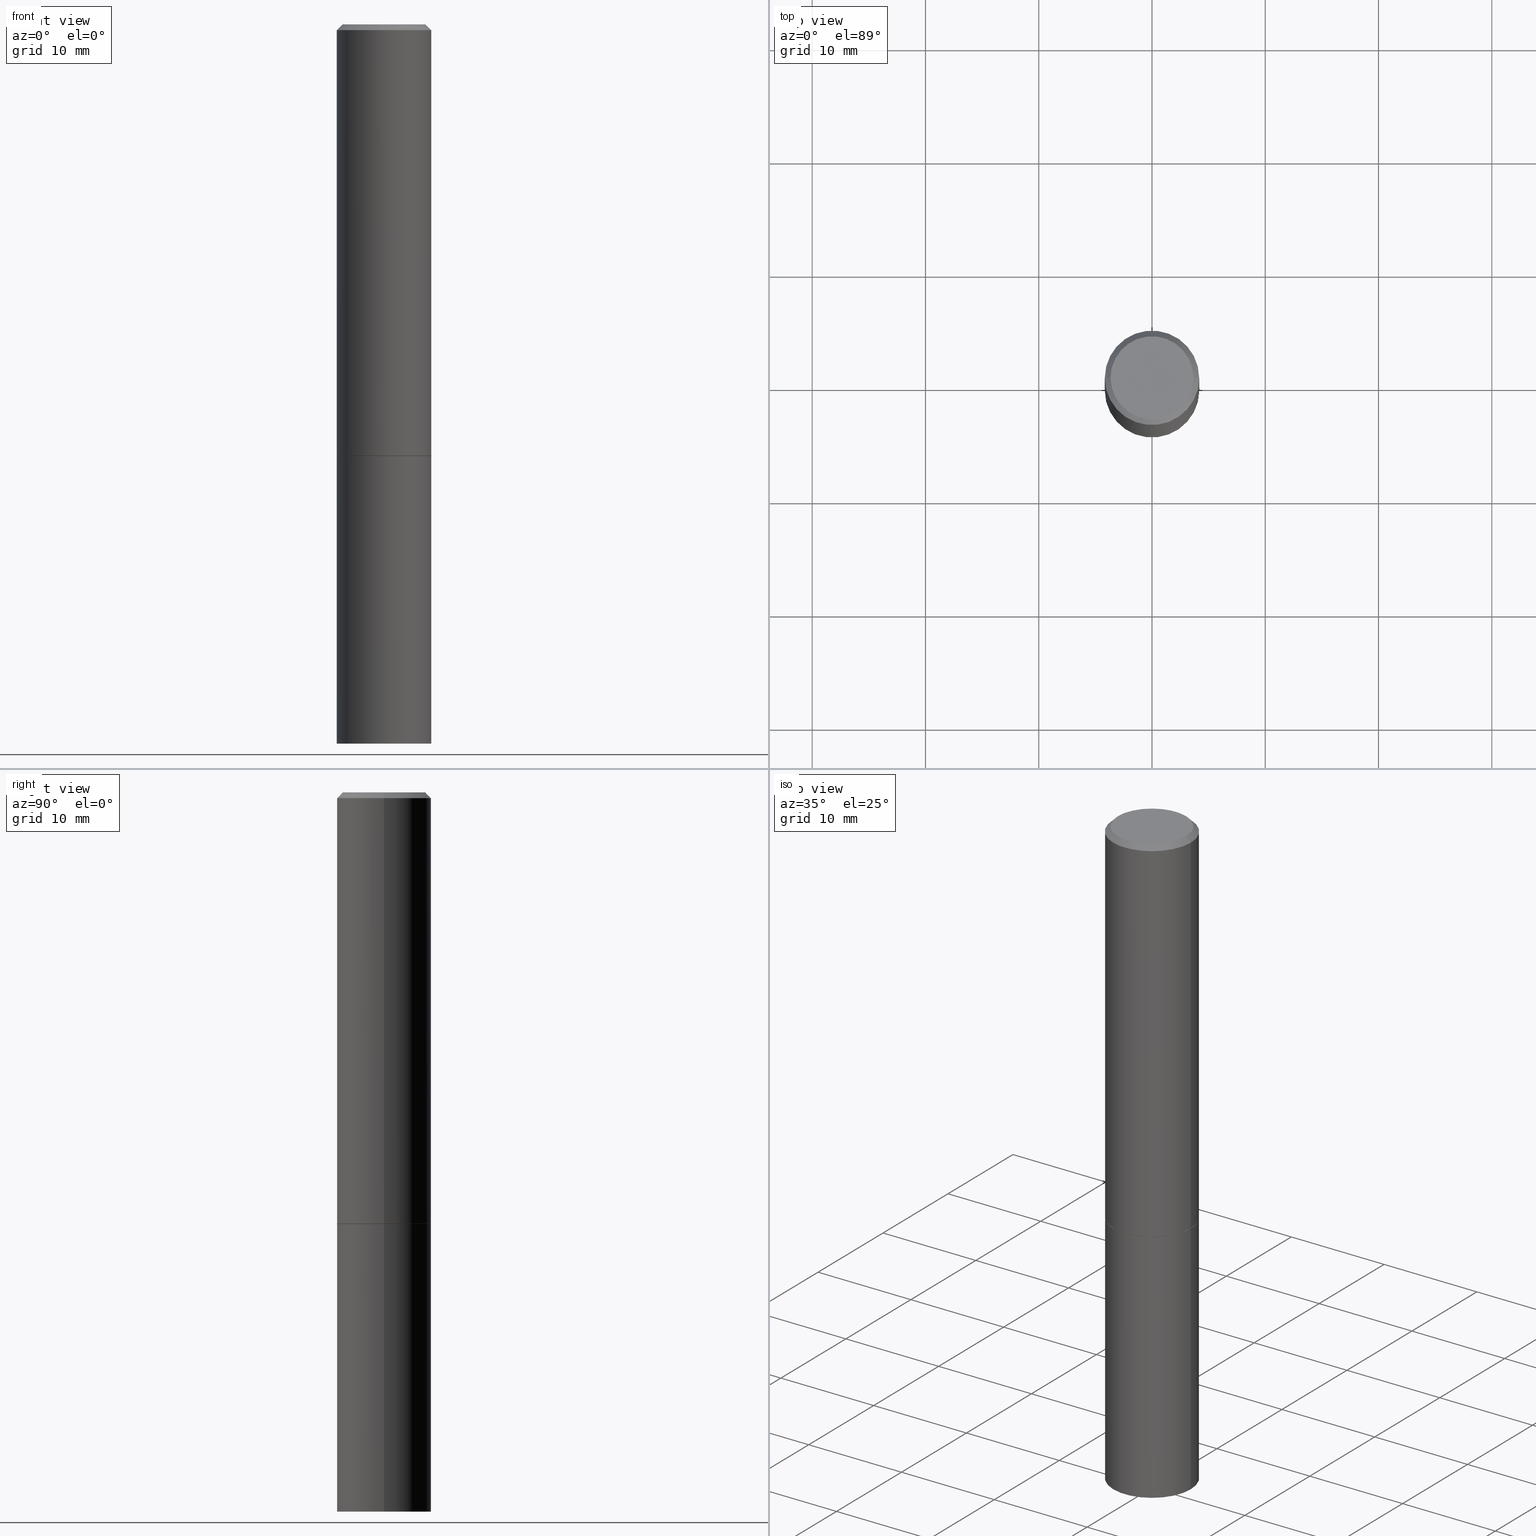
[diagram: canonical four-view strip — front | top / right | iso, engineering-drawing reading convention]
A machine part, canonical four-view strip (front | top / right | iso — engineering-drawing reading convention). The complete STEP part file that produces these views, byte-faithful:
ISO-10303-21;
HEADER;
FILE_DESCRIPTION (( 'STEP AP203' ),
    '1' );
FILE_NAME ('30011.STEP',
    '2023-03-21T20:20:33',
    ( '' ),
    ( '' ),
    'SwSTEP 2.0',
    'SolidWorks 2022',
    '' );
FILE_SCHEMA (( 'CONFIG_CONTROL_DESIGN' ));
ENDSEC;

DATA;
#1 = DIRECTION ( 'NONE',  ( 1.000000000000000000, -6.982962677686270655E-15, 0.000000000000000000 ) ) ;
#2 = DIRECTION ( 'NONE',  ( 2.445468806185136597E-29, -3.491481338843145583E-15, -1.000000000000000000 ) ) ;
#3 = DIRECTION ( 'NONE',  ( -0.7071067811865465735, 2.468850131082246805E-15, -0.7071067811865484609 ) ) ;
#4 = CARTESIAN_POINT ( 'NONE',  ( -0.1640500000000000014, -1.486134718836924278E-15, -1.499000000000000110 ) ) ;
#5 = AXIS2_PLACEMENT_3D ( 'NONE', #324, #48, #354 ) ;
#6 = DIRECTION ( 'NONE',  ( 1.000000000000000000, -6.982962677686270655E-15, 0.000000000000000000 ) ) ;
#7 = CC_DESIGN_DATE_AND_TIME_ASSIGNMENT ( #316, #153, ( #291 ) ) ;
#8 = PERSON_AND_ORGANIZATION_ROLE ( 'creator' ) ;
#9 = CIRCLE ( 'NONE', #366, 0.1640500000000000014 ) ;
#10 = ORIENTED_EDGE ( 'NONE', *, *, #63, .F. ) ;
#11 = EDGE_LOOP ( 'NONE', ( #52, #253 ) ) ;
#12 = DIRECTION ( 'NONE',  ( -2.445468806185136597E-29, 3.491481338843145583E-15, 1.000000000000000000 ) ) ;
#13 = PERSON_AND_ORGANIZATION ( #114, #358 ) ;
#14 = VECTOR ( 'NONE', #108, 39.37007874015748143 ) ;
#15 = EDGE_LOOP ( 'NONE', ( #262, #74, #353, #216 ) ) ;
#16 = ORIENTED_EDGE ( 'NONE', *, *, #288, .T. ) ;
#17 = EDGE_CURVE ( 'NONE', #321, #318, #139, .T. ) ;
#18 = VECTOR ( 'NONE', #243, 39.37007874015748854 ) ;
#19 = CARTESIAN_POINT ( 'NONE',  ( 1.145555027274468542E-15, 0.1640499999999947556, -1.500000000000000666 ) ) ;
#20 = ORIENTED_EDGE ( 'NONE', *, *, #17, .T. ) ;
#21 = EDGE_CURVE ( 'NONE', #227, #219, #383, .T. ) ;
#22 = ORIENTED_EDGE ( 'NONE', *, *, #17, .F. ) ;
#23 = ORIENTED_EDGE ( 'NONE', *, *, #209, .F. ) ;
#24 = DIRECTION ( 'NONE',  ( -2.445468806185136877E-29, 3.491481338843145188E-15, 1.000000000000000000 ) ) ;
#25 = CYLINDRICAL_SURFACE ( 'NONE', #362, 0.1640499999999999181 ) ;
#26 = AXIS2_PLACEMENT_3D ( 'NONE', #388, #2, #228 ) ;
#27 = CARTESIAN_POINT ( 'NONE',  ( 4.890937612370284544E-31, -6.982962677686307633E-17, -0.02000000000000004552 ) ) ;
#28 = FACE_OUTER_BOUND ( 'NONE', #105, .T. ) ;
#29 = DIRECTION ( 'NONE',  ( 1.000000000000000000, -6.982962677686266711E-15, 4.876176775795935232E-29 ) ) ;
#30 = CARTESIAN_POINT ( 'NONE',  ( 0.1640499999999998626, -1.195294323311281667E-15, -0.02000000000000004552 ) ) ;
#31 = DIRECTION ( 'NONE',  ( -2.445468806185136597E-29, 3.491481338843145583E-15, 1.000000000000000000 ) ) ;
#32 = ADVANCED_FACE ( 'NONE', ( #81 ), #73, .F. ) ;
#33 = CARTESIAN_POINT ( 'NONE',  ( 0.000000000000000000, 0.000000000000000000, 0.000000000000000000 ) ) ;
#34 = APPROVAL_DATE_TIME ( #154, #317 ) ;
#35 = MANIFOLD_SOLID_BREP ( 'Body-Move/Copy2[2]', #346 ) ;
#36 = SHAPE_DEFINITION_REPRESENTATION ( #112, #255 ) ;
#37 = CIRCLE ( 'NONE', #203, 0.1440499999999998726 ) ;
#38 = PERSON_AND_ORGANIZATION_ROLE ( 'creator' ) ;
#39 = ORIENTED_EDGE ( 'NONE', *, *, #371, .T. ) ;
#40 = PERSON_AND_ORGANIZATION ( #114, #358 ) ;
#41 = ORIENTED_EDGE ( 'NONE', *, *, #225, .F. ) ;
#42 = DIRECTION ( 'NONE',  ( 1.000000000000000000, -6.982962677686264344E-15, 0.000000000000000000 ) ) ;
#43 = APPROVAL_ROLE ( '' ) ;
#44 = PRODUCT_RELATED_PRODUCT_CATEGORY ( 'detail', '', ( #235 ) ) ;
#45 = UNCERTAINTY_MEASURE_WITH_UNIT (LENGTH_MEASURE( 1.000000000000000082E-05 ), #61, 'distance_accuracy_value', 'NONE');
#46 = DIRECTION ( 'NONE',  ( 2.445468806185136597E-29, -3.491481338843145583E-15, -1.000000000000000000 ) ) ;
#47 = CARTESIAN_POINT ( 'NONE',  ( 4.890937612370284544E-31, -6.982962677686307633E-17, -0.02000000000000004552 ) ) ;
#48 = DIRECTION ( 'NONE',  ( -2.445468806185136597E-29, 3.491481338843145583E-15, 1.000000000000000000 ) ) ;
#49 = DIRECTION ( 'NONE',  ( -1.000000000000000000, 6.982962677686265922E-15, 0.000000000000000000 ) ) ;
#50 = AXIS2_PLACEMENT_3D ( 'NONE', #273, #199, #301 ) ;
#51 = DIRECTION ( 'NONE',  ( -1.000000000000000000, 6.982962677686265922E-15, -4.876176775795935793E-29 ) ) ;
#52 = ORIENTED_EDGE ( 'NONE', *, *, #106, .T. ) ;
#53 = DIRECTION ( 'NONE',  ( 2.438088387897960049E-29, -3.491481338843145188E-15, -1.000000000000000000 ) ) ;
#54 = CYLINDRICAL_SURFACE ( 'NONE', #5, 0.1640500000000000014 ) ;
#55 = APPROVAL_PERSON_ORGANIZATION ( #187, #376, #43 ) ;
#56 = ORIENTED_EDGE ( 'NONE', *, *, #151, .F. ) ;
#57 = CC_DESIGN_PERSON_AND_ORGANIZATION_ASSIGNMENT ( #286, #150, ( #265 ) ) ;
#58 = DIRECTION ( 'NONE',  ( 2.445468806185136597E-29, -3.491481338843145583E-15, -1.000000000000000000 ) ) ;
#59 = ADVANCED_FACE ( 'NONE', ( #111 ), #94, .F. ) ;
#60 = DIRECTION ( 'NONE',  ( -2.445468806185136877E-29, 3.491481338843145188E-15, 1.000000000000000000 ) ) ;
#61 =( CONVERSION_BASED_UNIT ( 'INCH', #91 ) LENGTH_UNIT ( ) NAMED_UNIT ( #338 ) );
#62 = CARTESIAN_POINT ( 'NONE',  ( 2.039178106419926686E-19, -8.698685349594879101E-15, -2.491402503808618274 ) ) ;
#63 = EDGE_CURVE ( 'NONE', #233, #227, #329, .T. ) ;
#64 = AXIS2_PLACEMENT_3D ( 'NONE', #336, #180, #6 ) ;
#65 = PERSON_AND_ORGANIZATION_ROLE ( 'classification_officer' ) ;
#66 = EDGE_LOOP ( 'NONE', ( #135, #140, #23, #22 ) ) ;
#67 = APPROVAL_ROLE ( '' ) ;
#68 = COORDINATED_UNIVERSAL_TIME_OFFSET ( 5, 0, .BEHIND. ) ;
#69 = ADVANCED_FACE ( 'NONE', ( #197 ), #352, .F. ) ;
#70 = APPROVAL ( #217, 'UNSPECIFIED' ) ;
#71 = COORDINATED_UNIVERSAL_TIME_OFFSET ( 5, 0, .BEHIND. ) ;
#72 = AXIS2_PLACEMENT_3D ( 'NONE', #113, #171, #305 ) ;
#73 = PLANE ( 'NONE',  #294 ) ;
#74 = ORIENTED_EDGE ( 'NONE', *, *, #151, .T. ) ;
#75 = CIRCLE ( 'NONE', #339, 0.1640499999999998626 ) ;
#76 = DIRECTION ( 'NONE',  ( -1.000000000000000000, 6.982962677686265922E-15, -4.876176775795935793E-29 ) ) ;
#77 = VERTEX_POINT ( 'NONE', #160 ) ;
#78 = CARTESIAN_POINT ( 'NONE',  ( 0.000000000000000000, 0.000000000000000000, 0.000000000000000000 ) ) ;
#79 = CC_DESIGN_SECURITY_CLASSIFICATION ( #278, ( #265 ) ) ;
#80 = DIRECTION ( 'NONE',  ( 1.000000000000000000, -6.982962677686265922E-15, 4.876176775795935793E-29 ) ) ;
#81 = FACE_OUTER_BOUND ( 'NONE', #326, .T. ) ;
#82 = LINE ( 'NONE', #198, #378 ) ;
#83 = FACE_OUTER_BOUND ( 'NONE', #116, .T. ) ;
#84 = EDGE_CURVE ( 'NONE', #219, #221, #9, .T. ) ;
#85 = CARTESIAN_POINT ( 'NONE',  ( 0.1630499999999999727, -6.375794072861463825E-15, -1.500000000000000222 ) ) ;
#86 = CONICAL_SURFACE ( 'NONE', #133, 0.1630499999999999727, 0.7853981633974141952 ) ;
#87 = VECTOR ( 'NONE', #351, 39.37007874015748143 ) ;
#88 = LINE ( 'NONE', #85, #122 ) ;
#89 = AXIS2_PLACEMENT_3D ( 'NONE', #292, #12, #130 ) ;
#90 = DIRECTION ( 'NONE',  ( 1.000000000000000000, -6.982962677686266711E-15, 0.000000000000000000 ) ) ;
#91 = LENGTH_MEASURE_WITH_UNIT ( LENGTH_MEASURE( 0.02539999999999999897 ), #276 );
#92 = DIRECTION ( 'NONE',  ( 1.000000000000000000, -6.982962677686267499E-15, 4.876176775795935793E-29 ) ) ;
#93 = CARTESIAN_POINT ( 'NONE',  ( -0.1640499999999999181, 1.165645358014443773E-15, -8.069513015563169361E-30 ) ) ;
#94 = CONICAL_SURFACE ( 'NONE', #300, 751.2258538476644389, 1.518436449235073482 ) ;
#95 = PERSON_AND_ORGANIZATION ( #114, #358 ) ;
#96 = ORIENTED_EDGE ( 'NONE', *, *, #261, .F. ) ;
#97 = CARTESIAN_POINT ( 'NONE',  ( 0.000000000000000000, 0.000000000000000000, 0.000000000000000000 ) ) ;
#98 = EDGE_CURVE ( 'NONE', #267, #318, #75, .T. ) ;
#99 = AXIS2_PLACEMENT_3D ( 'NONE', #331, #118, #173 ) ;
#100 = APPROVAL_STATUS ( 'not_yet_approved' ) ;
#101 = EDGE_CURVE ( 'NONE', #77, #267, #232, .T. ) ;
#102 = ORIENTED_EDGE ( 'NONE', *, *, #369, .T. ) ;
#103 = CYLINDRICAL_SURFACE ( 'NONE', #270, 0.1640499999999999181 ) ;
#104 = ORIENTED_EDGE ( 'NONE', *, *, #101, .T. ) ;
#105 = EDGE_LOOP ( 'NONE', ( #258, #344, #16, #356 ) ) ;
#106 = EDGE_CURVE ( 'NONE', #77, #372, #211, .T. ) ;
#107 = DIRECTION ( 'NONE',  ( -2.438088387897960049E-29, 3.491481338843145188E-15, 1.000000000000000000 ) ) ;
#108 = DIRECTION ( 'NONE',  ( -2.445468806185136877E-29, 3.491481338843145188E-15, 1.000000000000000000 ) ) ;
#109 = APPROVAL_PERSON_ORGANIZATION ( #13, #70, #67 ) ;
#110 = CIRCLE ( 'NONE', #337, 0.1640500000000000014 ) ;
#111 = FACE_OUTER_BOUND ( 'NONE', #263, .T. ) ;
#112 = PRODUCT_DEFINITION_SHAPE ( 'NONE', 'NONE',  #291 ) ;
#113 = CARTESIAN_POINT ( 'NONE',  ( 3.668203209277704895E-29, -5.237222008264718177E-15, -1.500000000000000222 ) ) ;
#114 = PERSON ( 'UNSPECIFIED', 'UNSPECIFIED', 'UNSPECIFIED', ('UNSPECIFIED'), ('UNSPECIFIED'), ('UNSPECIFIED') ) ;
#115 = DIRECTION ( 'NONE',  ( -2.445468806185136877E-29, 3.491481338843145188E-15, 1.000000000000000000 ) ) ;
#116 = EDGE_LOOP ( 'NONE', ( #259, #302, #186 ) ) ;
#117 = CARTESIAN_POINT ( 'NONE',  ( 3.668203209277704895E-29, -5.237222008264718177E-15, -1.500000000000000222 ) ) ;
#118 = DIRECTION ( 'NONE',  ( -2.445468806185136597E-29, 3.491481338843145583E-15, 1.000000000000000000 ) ) ;
#119 = ADVANCED_FACE ( 'NONE', ( #308 ), #179, .T. ) ;
#120 = DIRECTION ( 'NONE',  ( 0.9986295347545742773, -7.033825938271998700E-15, -0.05233595624293709697 ) ) ;
#121 = LINE ( 'NONE', #206, #18 ) ;
#122 = VECTOR ( 'NONE', #309, 39.37007874015748854 ) ;
#123 = DATE_TIME_ROLE ( 'classification_date' ) ;
#124 = CONICAL_SURFACE ( 'NONE', #240, 751.2258538476644389, 1.518436449235073482 ) ;
#125 = ADVANCED_FACE ( 'NONE', ( #239 ), #25, .T. ) ;
#126 = VERTEX_POINT ( 'NONE', #319 ) ;
#127 = ORIENTED_EDGE ( 'NONE', *, *, #98, .T. ) ;
#128 = SECURITY_CLASSIFICATION_LEVEL ( 'unclassified' ) ;
#129 = EDGE_LOOP ( 'NONE', ( #260, #39, #20, #381 ) ) ;
#130 = DIRECTION ( 'NONE',  ( 1.000000000000000000, -6.982962677686264344E-15, 0.000000000000000000 ) ) ;
#131 = ORIENTED_EDGE ( 'NONE', *, *, #379, .T. ) ;
#132 = EDGE_LOOP ( 'NONE', ( #170, #332, #194, #41 ) ) ;
#133 = AXIS2_PLACEMENT_3D ( 'NONE', #117, #241, #313 ) ;
#134 = DIRECTION ( 'NONE',  ( -2.445468806185136597E-29, 3.491481338843145583E-15, 1.000000000000000000 ) ) ;
#135 = ORIENTED_EDGE ( 'NONE', *, *, #274, .T. ) ;
#136 = ORIENTED_EDGE ( 'NONE', *, *, #242, .T. ) ;
#137 = ORIENTED_EDGE ( 'NONE', *, *, #384, .F. ) ;
#138 = FACE_OUTER_BOUND ( 'NONE', #323, .T. ) ;
#139 = LINE ( 'NONE', #389, #248 ) ;
#140 = ORIENTED_EDGE ( 'NONE', *, *, #342, .T. ) ;
#141 = EDGE_CURVE ( 'NONE', #161, #264, #333, .T. ) ;
#142 = ORIENTED_EDGE ( 'NONE', *, *, #106, .F. ) ;
#143 = CARTESIAN_POINT ( 'NONE',  ( -0.1640499999999998071, -7.583148319833432491E-15, -2.500000000000000000 ) ) ;
#144 = CARTESIAN_POINT ( 'NONE',  ( 0.1640500000000000014, -6.379285554200308410E-15, -1.499000000000000110 ) ) ;
#145 = DIRECTION ( 'NONE',  ( -1.000000000000000000, 6.982962677686266711E-15, 0.000000000000000000 ) ) ;
#146 = DIRECTION ( 'NONE',  ( 1.000000000000000000, -6.982962677686264344E-15, 0.000000000000000000 ) ) ;
#147 = CC_DESIGN_APPROVAL ( #376, ( #278 ) ) ;
#148 = CARTESIAN_POINT ( 'NONE',  ( 3.668203209277704895E-29, -5.237222008264718177E-15, -1.500000000000000222 ) ) ;
#149 = CARTESIAN_POINT ( 'NONE',  ( 0.1440499999999998726, -1.091774529945134884E-15, 7.334608212837371229E-30 ) ) ;
#150 = PERSON_AND_ORGANIZATION_ROLE ( 'design_supplier' ) ;
#151 = EDGE_CURVE ( 'NONE', #227, #126, #283, .T. ) ;
#152 = CONICAL_SURFACE ( 'NONE', #72, 0.1630499999999999727, 0.7853981633974141952 ) ;
#153 = DATE_TIME_ROLE ( 'creation_date' ) ;
#154 = DATE_AND_TIME ( #247, #214 ) ;
#155 = ADVANCED_FACE ( 'NONE', ( #374 ), #103, .T. ) ;
#156 = ORIENTED_EDGE ( 'NONE', *, *, #141, .F. ) ;
#157 = COORDINATED_UNIVERSAL_TIME_OFFSET ( 5, 0, .BEHIND. ) ;
#158 = CIRCLE ( 'NONE', #387, 0.1630499999999999727 ) ;
#159 = DATE_AND_TIME ( #220, #325 ) ;
#160 = CARTESIAN_POINT ( 'NONE',  ( -0.1440499999999998726, 1.040810587109136913E-15, -7.156668557471614476E-30 ) ) ;
#161 = VERTEX_POINT ( 'NONE', #330 ) ;
#162 = CC_DESIGN_PERSON_AND_ORGANIZATION_ASSIGNMENT ( #95, #8, ( #265 ) ) ;
#163 = APPLICATION_CONTEXT ( 'configuration controlled 3d designs of mechanical parts and assemblies' ) ;
#164 = ORIENTED_EDGE ( 'NONE', *, *, #84, .T. ) ;
#165 = FACE_OUTER_BOUND ( 'NONE', #224, .T. ) ;
#166 = CLOSED_SHELL ( 'NONE', ( #191, #59, #177, #119, #32 ) ) ;
#167 = DIRECTION ( 'NONE',  ( -1.000000000000000000, 6.982962677686265922E-15, 0.000000000000000000 ) ) ;
#168 = CC_DESIGN_PERSON_AND_ORGANIZATION_ASSIGNMENT ( #285, #38, ( #291 ) ) ;
#169 = LINE ( 'NONE', #256, #87 ) ;
#170 = ORIENTED_EDGE ( 'NONE', *, *, #307, .T. ) ;
#171 = DIRECTION ( 'NONE',  ( -2.445468806185136597E-29, 3.491481338843145583E-15, 1.000000000000000000 ) ) ;
#172 = CARTESIAN_POINT ( 'NONE',  ( 3.668203209277704895E-29, -5.237222008264718177E-15, -1.500000000000000222 ) ) ;
#173 = DIRECTION ( 'NONE',  ( 1.000000000000000000, -6.982962677686266711E-15, 4.876176775795935232E-29 ) ) ;
#174 = PLANE ( 'NONE',  #306 ) ;
#175 = CARTESIAN_POINT ( 'NONE',  ( 3.665757740471519853E-29, -5.233730526925875958E-15, -1.499000000000000110 ) ) ;
#176 = DIRECTION ( 'NONE',  ( -2.445468806185136597E-29, 3.491481338843145583E-15, 1.000000000000000000 ) ) ;
#177 = ADVANCED_FACE ( 'NONE', ( #83 ), #124, .F. ) ;
#178 = DIRECTION ( 'NONE',  ( -2.445468806185136597E-29, 3.491481338843145583E-15, 1.000000000000000000 ) ) ;
#179 = CYLINDRICAL_SURFACE ( 'NONE', #99, 0.1640500000000000014 ) ;
#180 = DIRECTION ( 'NONE',  ( -2.445468806185136597E-29, 3.491481338843145583E-15, 1.000000000000000000 ) ) ;
#181 = PERSON_AND_ORGANIZATION ( #114, #358 ) ;
#182 = VECTOR ( 'NONE', #60, 39.37007874015748143 ) ;
#183 = APPLICATION_CONTEXT ( 'configuration controlled 3d designs of mechanical parts and assemblies' ) ;
#184 = AXIS2_PLACEMENT_3D ( 'NONE', #284, #370, #42 ) ;
#185 = COORDINATED_UNIVERSAL_TIME_OFFSET ( 5, 0, .BEHIND. ) ;
#186 = ORIENTED_EDGE ( 'NONE', *, *, #307, .F. ) ;
#187 = PERSON_AND_ORGANIZATION ( #114, #358 ) ;
#188 = CC_DESIGN_APPROVAL ( #70, ( #291 ) ) ;
#189 = APPROVAL_ROLE ( '' ) ;
#190 = CONICAL_SURFACE ( 'NONE', #26, 0.1640499999999998626, 0.7853981633974469467 ) ;
#191 = ADVANCED_FACE ( 'NONE', ( #266 ), #54, .T. ) ;
#192 = ORIENTED_EDGE ( 'NONE', *, *, #209, .T. ) ;
#193 = CARTESIAN_POINT ( 'NONE',  ( 1.023709465628232683E-27, -1.461585805796399817E-13, -41.86148124396609660 ) ) ;
#194 = ORIENTED_EDGE ( 'NONE', *, *, #379, .F. ) ;
#195 = CARTESIAN_POINT ( 'NONE',  ( 6.092504711669461854E-29, -8.698889267405459918E-15, -2.491402503808618274 ) ) ;
#196 = DIRECTION ( 'NONE',  ( 2.438088387897960049E-29, -3.491481338843145188E-15, -1.000000000000000000 ) ) ;
#197 = FACE_OUTER_BOUND ( 'NONE', #11, .T. ) ;
#198 = CARTESIAN_POINT ( 'NONE',  ( 0.1640500000000000014, -1.145555027274432057E-15, 7.999368000693231542E-30 ) ) ;
#199 = DIRECTION ( 'NONE',  ( -2.445468806185136597E-29, 3.491481338843145583E-15, 1.000000000000000000 ) ) ;
#200 = CIRCLE ( 'NONE', #350, 0.1640500000000000014 ) ;
#201 = ADVANCED_FACE ( 'NONE', ( #382 ), #190, .T. ) ;
#202 = DIRECTION ( 'NONE',  ( 1.000000000000000000, -6.982962677686266711E-15, 4.876176775795935232E-29 ) ) ;
#203 = AXIS2_PLACEMENT_3D ( 'NONE', #33, #31, #202 ) ;
#204 = AXIS2_PLACEMENT_3D ( 'NONE', #27, #58, #145 ) ;
#205 = CARTESIAN_POINT ( 'NONE',  ( 6.113672015462842613E-29, -8.728703347107864943E-15, -2.500000000000000000 ) ) ;
#206 = CARTESIAN_POINT ( 'NONE',  ( -0.1630499999999999727, -4.078682077607875412E-15, -1.500000000000000222 ) ) ;
#207 = ADVANCED_FACE ( 'NONE', ( #165 ), #380, .T. ) ;
#208 = DIRECTION ( 'NONE',  ( 1.000000000000000000, -6.982962677686264344E-15, 0.000000000000000000 ) ) ;
#209 = EDGE_CURVE ( 'NONE', #318, #267, #218, .T. ) ;
#210 = DIRECTION ( 'NONE',  ( 1.000000000000000000, -6.982962677686270655E-15, 0.000000000000000000 ) ) ;
#211 = CIRCLE ( 'NONE', #315, 0.1440499999999998726 ) ;
#212 = CALENDAR_DATE ( 2023, 21, 3 ) ;
#213 = APPLICATION_PROTOCOL_DEFINITION ( 'international standard', 'config_control_design', 1994, #163 ) ;
#214 = LOCAL_TIME ( 16, 20, 33.00000000000000000, #157 ) ;
#215 = ADVANCED_FACE ( 'NONE', ( #138 ), #152, .T. ) ;
#216 = ORIENTED_EDGE ( 'NONE', *, *, #84, .F. ) ;
#217 = APPROVAL_STATUS ( 'not_yet_approved' ) ;
#218 = CIRCLE ( 'NONE', #50, 0.1640499999999998626 ) ;
#219 = VERTEX_POINT ( 'NONE', #231 ) ;
#220 = CALENDAR_DATE ( 2023, 21, 3 ) ;
#221 = VERTEX_POINT ( 'NONE', #385 ) ;
#222 = DIRECTION ( 'NONE',  ( 0.000000000000000000, 0.000000000000000000, 1.000000000000000000 ) ) ;
#223 = CC_DESIGN_PERSON_AND_ORGANIZATION_ASSIGNMENT ( #181, #65, ( #278 ) ) ;
#224 = EDGE_LOOP ( 'NONE', ( #303, #142, #104, #127 ) ) ;
#225 = EDGE_CURVE ( 'NONE', #126, #221, #82, .T. ) ;
#226 = CARTESIAN_POINT ( 'NONE',  ( 1.023709465628232683E-27, -1.461585805796399817E-13, -41.86148124396609660 ) ) ;
#227 = VERTEX_POINT ( 'NONE', #143 ) ;
#228 = DIRECTION ( 'NONE',  ( -1.000000000000000000, 6.982962677686266711E-15, 0.000000000000000000 ) ) ;
#229 = ADVANCED_FACE ( 'NONE', ( #269 ), #174, .F. ) ;
#230 = DIRECTION ( 'NONE',  ( -0.9986295347545742773, 6.790662755453666100E-15, -0.05233595624293709697 ) ) ;
#231 = CARTESIAN_POINT ( 'NONE',  ( -0.1640500000000000014, -5.817317319671846603E-15, -1.500000000000000222 ) ) ;
#232 = LINE ( 'NONE', #244, #390 ) ;
#233 = VERTEX_POINT ( 'NONE', #195 ) ;
#234 = DIRECTION ( 'NONE',  ( -2.445468806185136597E-29, 3.491481338843145583E-15, 1.000000000000000000 ) ) ;
#235 = PRODUCT ( '30011', '30011', '', ( #320 ) ) ;
#236 = LOCAL_TIME ( 16, 20, 33.00000000000000000, #68 ) ;
#237 = CIRCLE ( 'NONE', #64, 0.1640500000000000014 ) ;
#238 = CARTESIAN_POINT ( 'NONE',  ( -0.1640499999999998626, 1.075725400497567970E-15, -0.02000000000000004552 ) ) ;
#239 = FACE_OUTER_BOUND ( 'NONE', #66, .T. ) ;
#240 = AXIS2_PLACEMENT_3D ( 'NONE', #193, #328, #49 ) ;
#241 = DIRECTION ( 'NONE',  ( -2.445468806185136597E-29, 3.491481338843145583E-15, 1.000000000000000000 ) ) ;
#242 = EDGE_CURVE ( 'NONE', #372, #318, #169, .T. ) ;
#243 = DIRECTION ( 'NONE',  ( -0.7071067811865232589, 7.493145998870265808E-15, 0.7071067811865715536 ) ) ;
#244 = CARTESIAN_POINT ( 'NONE',  ( -0.1640499999999998626, 1.075725400497567970E-15, -0.02000000000000004552 ) ) ;
#245 = LOCAL_TIME ( 16, 20, 33.00000000000000000, #71 ) ;
#246 = LINE ( 'NONE', #62, #290 ) ;
#247 = CALENDAR_DATE ( 2023, 21, 3 ) ;
#248 = VECTOR ( 'NONE', #115, 39.37007874015748143 ) ;
#249 = EDGE_LOOP ( 'NONE', ( #156, #137 ) ) ;
#250 = APPLICATION_PROTOCOL_DEFINITION ( 'international standard', 'config_control_design', 1994, #183 ) ;
#251 = LOCAL_TIME ( 16, 20, 33.00000000000000000, #293 ) ;
#252 = DATE_AND_TIME ( #212, #236 ) ;
#253 = ORIENTED_EDGE ( 'NONE', *, *, #261, .T. ) ;
#254 = APPROVAL_DATE_TIME ( #367, #376 ) ;
#255 = ADVANCED_BREP_SHAPE_REPRESENTATION ( '30011', ( #311, #35, #304 ), #272 ) ;
#256 = CARTESIAN_POINT ( 'NONE',  ( 0.1640499999999998626, -1.195294323311281667E-15, -0.02000000000000004552 ) ) ;
#257 = APPROVAL_PERSON_ORGANIZATION ( #40, #317, #189 ) ;
#258 = ORIENTED_EDGE ( 'NONE', *, *, #369, .F. ) ;
#259 = ORIENTED_EDGE ( 'NONE', *, *, #375, .F. ) ;
#260 = ORIENTED_EDGE ( 'NONE', *, *, #342, .F. ) ;
#261 = EDGE_CURVE ( 'NONE', #372, #77, #37, .T. ) ;
#262 = ORIENTED_EDGE ( 'NONE', *, *, #21, .F. ) ;
#263 = EDGE_LOOP ( 'NONE', ( #10, #296, #56 ) ) ;
#264 = VERTEX_POINT ( 'NONE', #340 ) ;
#265 = PRODUCT_DEFINITION_FORMATION_WITH_SPECIFIED_SOURCE ( 'ANY', '', #235, .NOT_KNOWN. ) ;
#266 = FACE_OUTER_BOUND ( 'NONE', #132, .T. ) ;
#267 = VERTEX_POINT ( 'NONE', #238 ) ;
#268 = ORIENTED_EDGE ( 'NONE', *, *, #288, .F. ) ;
#269 = FACE_OUTER_BOUND ( 'NONE', #249, .T. ) ;
#270 = AXIS2_PLACEMENT_3D ( 'NONE', #78, #234, #357 ) ;
#271 = LINE ( 'NONE', #93, #182 ) ;
#272 =( GEOMETRIC_REPRESENTATION_CONTEXT ( 3 ) GLOBAL_UNCERTAINTY_ASSIGNED_CONTEXT ( ( #45 ) ) GLOBAL_UNIT_ASSIGNED_CONTEXT ( ( #61, #312, #368 ) ) REPRESENTATION_CONTEXT ( 'NONE', 'WORKASPACE' ) );
#273 = CARTESIAN_POINT ( 'NONE',  ( 4.890937612370284544E-31, -6.982962677686307633E-17, -0.02000000000000004552 ) ) ;
#274 = EDGE_CURVE ( 'NONE', #321, #289, #365, .T. ) ;
#275 = CARTESIAN_POINT ( 'NONE',  ( 3.668203209277704895E-29, -5.237222008264718177E-15, -1.500000000000000222 ) ) ;
#276 =( LENGTH_UNIT ( ) NAMED_UNIT ( * ) SI_UNIT ( $, .METRE. ) );
#277 = DIRECTION ( 'NONE',  ( -2.445468806185136597E-29, 3.491481338843145583E-15, 1.000000000000000000 ) ) ;
#278 = SECURITY_CLASSIFICATION ( '', '', #128 ) ;
#279 = APPROVAL_DATE_TIME ( #159, #70 ) ;
#280 = ADVANCED_FACE ( 'NONE', ( #28 ), #86, .T. ) ;
#281 = DIRECTION ( 'NONE',  ( 1.000000000000000000, 0.000000000000000000, 0.000000000000000000 ) ) ;
#282 = CC_DESIGN_DATE_AND_TIME_ASSIGNMENT ( #252, #123, ( #278 ) ) ;
#283 = CIRCLE ( 'NONE', #89, 0.1640500000000000014 ) ;
#284 = CARTESIAN_POINT ( 'NONE',  ( 3.668203209277704895E-29, -5.237222008264718177E-15, -1.500000000000000222 ) ) ;
#285 = PERSON_AND_ORGANIZATION ( #114, #358 ) ;
#286 = PERSON_AND_ORGANIZATION ( #114, #358 ) ;
#287 = CC_DESIGN_APPROVAL ( #317, ( #265 ) ) ;
#288 = EDGE_CURVE ( 'NONE', #161, #321, #88, .T. ) ;
#289 = VERTEX_POINT ( 'NONE', #4 ) ;
#290 = VECTOR ( 'NONE', #120, 39.37007874015748143 ) ;
#291 = PRODUCT_DEFINITION ( 'UNKNOWN', '', #265, #334 ) ;
#292 = CARTESIAN_POINT ( 'NONE',  ( 6.113672015462842613E-29, -8.728703347107864943E-15, -2.500000000000000000 ) ) ;
#293 = COORDINATED_UNIVERSAL_TIME_OFFSET ( 5, 0, .BEHIND. ) ;
#294 = AXIS2_PLACEMENT_3D ( 'NONE', #19, #196, #51 ) ;
#295 = DIRECTION ( 'NONE',  ( 1.000000000000000000, -6.982962677686270655E-15, 0.000000000000000000 ) ) ;
#296 = ORIENTED_EDGE ( 'NONE', *, *, #375, .T. ) ;
#297 = CARTESIAN_POINT ( 'NONE',  ( 1.005895773720705658E-15, 0.1440499999999998726, -5.029478868603546039E-16 ) ) ;
#298 = ORIENTED_EDGE ( 'NONE', *, *, #101, .F. ) ;
#299 = ORIENTED_EDGE ( 'NONE', *, *, #141, .T. ) ;
#300 = AXIS2_PLACEMENT_3D ( 'NONE', #226, #46, #167 ) ;
#301 = DIRECTION ( 'NONE',  ( 1.000000000000000000, -6.982962677686266711E-15, 0.000000000000000000 ) ) ;
#302 = ORIENTED_EDGE ( 'NONE', *, *, #63, .T. ) ;
#303 = ORIENTED_EDGE ( 'NONE', *, *, #242, .F. ) ;
#304 = AXIS2_PLACEMENT_3D ( 'NONE', #97, #222, #281 ) ;
#305 = DIRECTION ( 'NONE',  ( 1.000000000000000000, -6.982962677686264344E-15, 0.000000000000000000 ) ) ;
#306 = AXIS2_PLACEMENT_3D ( 'NONE', #172, #107, #80 ) ;
#307 = EDGE_CURVE ( 'NONE', #126, #227, #200, .T. ) ;
#308 = FACE_OUTER_BOUND ( 'NONE', #15, .T. ) ;
#309 = DIRECTION ( 'NONE',  ( 0.7071067811865232589, -2.468850131082003836E-15, 0.7071067811865715536 ) ) ;
#310 = DIRECTION ( 'NONE',  ( -2.445468806185136597E-29, 3.491481338843145583E-15, 1.000000000000000000 ) ) ;
#311 = MANIFOLD_SOLID_BREP ( 'Body-Move/Copy2[1]', #166 ) ;
#312 =( NAMED_UNIT ( * ) PLANE_ANGLE_UNIT ( ) SI_UNIT ( $, .RADIAN. ) );
#313 = DIRECTION ( 'NONE',  ( 1.000000000000000000, -6.982962677686264344E-15, 0.000000000000000000 ) ) ;
#314 = CALENDAR_DATE ( 2023, 21, 3 ) ;
#315 = AXIS2_PLACEMENT_3D ( 'NONE', #361, #176, #29 ) ;
#316 = DATE_AND_TIME ( #348, #245 ) ;
#317 = APPROVAL ( #100, 'UNSPECIFIED' ) ;
#318 = VERTEX_POINT ( 'NONE', #30 ) ;
#319 = CARTESIAN_POINT ( 'NONE',  ( 0.1640499999999998071, -9.854168043642283706E-15, -2.500000000000000000 ) ) ;
#320 = MECHANICAL_CONTEXT ( 'NONE', #163, 'mechanical' ) ;
#321 = VERTEX_POINT ( 'NONE', #144 ) ;
#322 = CARTESIAN_POINT ( 'NONE',  ( 3.668203209277704895E-29, -5.237222008264718177E-15, -1.500000000000000222 ) ) ;
#323 = EDGE_LOOP ( 'NONE', ( #299, #102, #347, #268 ) ) ;
#324 = CARTESIAN_POINT ( 'NONE',  ( 0.000000000000000000, 0.000000000000000000, 0.000000000000000000 ) ) ;
#325 = LOCAL_TIME ( 16, 20, 33.00000000000000000, #185 ) ;
#326 = EDGE_LOOP ( 'NONE', ( #131, #164 ) ) ;
#327 = AXIS2_PLACEMENT_3D ( 'NONE', #297, #53, #76 ) ;
#328 = DIRECTION ( 'NONE',  ( 2.445468806185136597E-29, -3.491481338843145583E-15, -1.000000000000000000 ) ) ;
#329 = LINE ( 'NONE', #386, #373 ) ;
#330 = CARTESIAN_POINT ( 'NONE',  ( 0.1630499999999999727, -6.375794072861463825E-15, -1.500000000000000222 ) ) ;
#331 = CARTESIAN_POINT ( 'NONE',  ( 0.000000000000000000, 0.000000000000000000, 0.000000000000000000 ) ) ;
#332 = ORIENTED_EDGE ( 'NONE', *, *, #21, .T. ) ;
#333 = CIRCLE ( 'NONE', #184, 0.1630499999999999727 ) ;
#334 = DESIGN_CONTEXT ( 'detailed design', #183, 'design' ) ;
#335 = CARTESIAN_POINT ( 'NONE',  ( 0.000000000000000000, 0.000000000000000000, 0.000000000000000000 ) ) ;
#336 = CARTESIAN_POINT ( 'NONE',  ( 3.665757740471519853E-29, -5.233730526925875958E-15, -1.499000000000000110 ) ) ;
#337 = AXIS2_PLACEMENT_3D ( 'NONE', #275, #363, #1 ) ;
#338 = DIMENSIONAL_EXPONENTS ( 1.000000000000000000, 0.000000000000000000, 0.000000000000000000, 0.000000000000000000, 0.000000000000000000, 0.000000000000000000, 0.000000000000000000 ) ;
#339 = AXIS2_PLACEMENT_3D ( 'NONE', #47, #277, #90 ) ;
#340 = CARTESIAN_POINT ( 'NONE',  ( -0.1630499999999999727, -4.073383623259653010E-15, -1.500000000000000222 ) ) ;
#341 = APPROVAL_STATUS ( 'not_yet_approved' ) ;
#342 = EDGE_CURVE ( 'NONE', #289, #267, #271, .T. ) ;
#343 = PERSON_AND_ORGANIZATION ( #114, #358 ) ;
#344 = ORIENTED_EDGE ( 'NONE', *, *, #384, .T. ) ;
#345 = PERSON_AND_ORGANIZATION_ROLE ( 'design_owner' ) ;
#346 = CLOSED_SHELL ( 'NONE', ( #215, #125, #201, #207, #155, #280, #229, #69 ) ) ;
#347 = ORIENTED_EDGE ( 'NONE', *, *, #274, .F. ) ;
#348 = CALENDAR_DATE ( 2023, 21, 3 ) ;
#349 = CARTESIAN_POINT ( 'NONE',  ( -0.1640500000000000014, 1.165645358014444365E-15, -8.069513015563172164E-30 ) ) ;
#350 = AXIS2_PLACEMENT_3D ( 'NONE', #205, #310, #146 ) ;
#351 = DIRECTION ( 'NONE',  ( 0.7071067811865465735, -7.319954787623252890E-15, -0.7071067811865484609 ) ) ;
#352 = PLANE ( 'NONE',  #327 ) ;
#353 = ORIENTED_EDGE ( 'NONE', *, *, #225, .T. ) ;
#354 = DIRECTION ( 'NONE',  ( 1.000000000000000000, -6.982962677686266711E-15, 4.876176775795935232E-29 ) ) ;
#355 = CC_DESIGN_PERSON_AND_ORGANIZATION_ASSIGNMENT ( #343, #345, ( #235 ) ) ;
#356 = ORIENTED_EDGE ( 'NONE', *, *, #371, .F. ) ;
#357 = DIRECTION ( 'NONE',  ( 1.000000000000000000, -6.982962677686267499E-15, 4.876176775795935793E-29 ) ) ;
#358 = ORGANIZATION ( 'UNSPECIFIED', 'UNSPECIFIED', '' ) ;
#359 = AXIS2_PLACEMENT_3D ( 'NONE', #175, #360, #210 ) ;
#360 = DIRECTION ( 'NONE',  ( -2.445468806185136597E-29, 3.491481338843145583E-15, 1.000000000000000000 ) ) ;
#361 = CARTESIAN_POINT ( 'NONE',  ( 0.000000000000000000, 0.000000000000000000, 0.000000000000000000 ) ) ;
#362 = AXIS2_PLACEMENT_3D ( 'NONE', #335, #364, #92 ) ;
#363 = DIRECTION ( 'NONE',  ( -2.445468806185136597E-29, 3.491481338843145583E-15, 1.000000000000000000 ) ) ;
#364 = DIRECTION ( 'NONE',  ( -2.445468806185136597E-29, 3.491481338843145583E-15, 1.000000000000000000 ) ) ;
#365 = CIRCLE ( 'NONE', #359, 0.1640500000000000014 ) ;
#366 = AXIS2_PLACEMENT_3D ( 'NONE', #322, #134, #295 ) ;
#367 = DATE_AND_TIME ( #314, #251 ) ;
#368 =( NAMED_UNIT ( * ) SI_UNIT ( $, .STERADIAN. ) SOLID_ANGLE_UNIT ( ) );
#369 = EDGE_CURVE ( 'NONE', #264, #289, #121, .T. ) ;
#370 = DIRECTION ( 'NONE',  ( -2.445468806185136597E-29, 3.491481338843145583E-15, 1.000000000000000000 ) ) ;
#371 = EDGE_CURVE ( 'NONE', #289, #321, #237, .T. ) ;
#372 = VERTEX_POINT ( 'NONE', #149 ) ;
#373 = VECTOR ( 'NONE', #230, 39.37007874015748143 ) ;
#374 = FACE_OUTER_BOUND ( 'NONE', #129, .T. ) ;
#375 = EDGE_CURVE ( 'NONE', #233, #126, #246, .T. ) ;
#376 = APPROVAL ( #341, 'UNSPECIFIED' ) ;
#377 = EDGE_LOOP ( 'NONE', ( #96, #136, #192, #298 ) ) ;
#378 = VECTOR ( 'NONE', #24, 39.37007874015748143 ) ;
#379 = EDGE_CURVE ( 'NONE', #221, #219, #110, .T. ) ;
#380 = CONICAL_SURFACE ( 'NONE', #204, 0.1640499999999998626, 0.7853981633974469467 ) ;
#381 = ORIENTED_EDGE ( 'NONE', *, *, #98, .F. ) ;
#382 = FACE_OUTER_BOUND ( 'NONE', #377, .T. ) ;
#383 = LINE ( 'NONE', #349, #14 ) ;
#384 = EDGE_CURVE ( 'NONE', #264, #161, #158, .T. ) ;
#385 = CARTESIAN_POINT ( 'NONE',  ( 0.1640500000000000014, -6.382777035539151417E-15, -1.500000000000000222 ) ) ;
#386 = CARTESIAN_POINT ( 'NONE',  ( -2.039178105201397551E-19, -8.698685349594879101E-15, -2.491402503808618274 ) ) ;
#387 = AXIS2_PLACEMENT_3D ( 'NONE', #148, #178, #208 ) ;
#388 = CARTESIAN_POINT ( 'NONE',  ( 4.890937612370284544E-31, -6.982962677686307633E-17, -0.02000000000000004552 ) ) ;
#389 = CARTESIAN_POINT ( 'NONE',  ( 0.1640499999999999181, -1.145555027274431663E-15, 7.999368000693228739E-30 ) ) ;
#390 = VECTOR ( 'NONE', #3, 39.37007874015748143 ) ;
ENDSEC;
END-ISO-10303-21;
